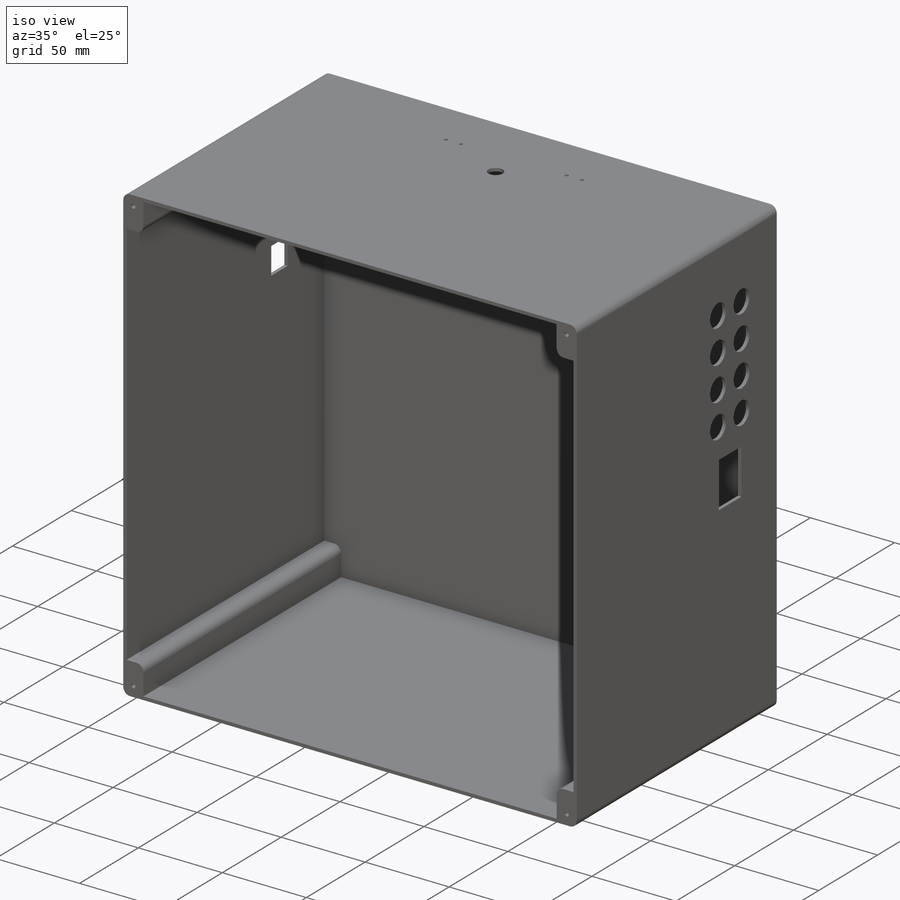
[diagram: iso view]
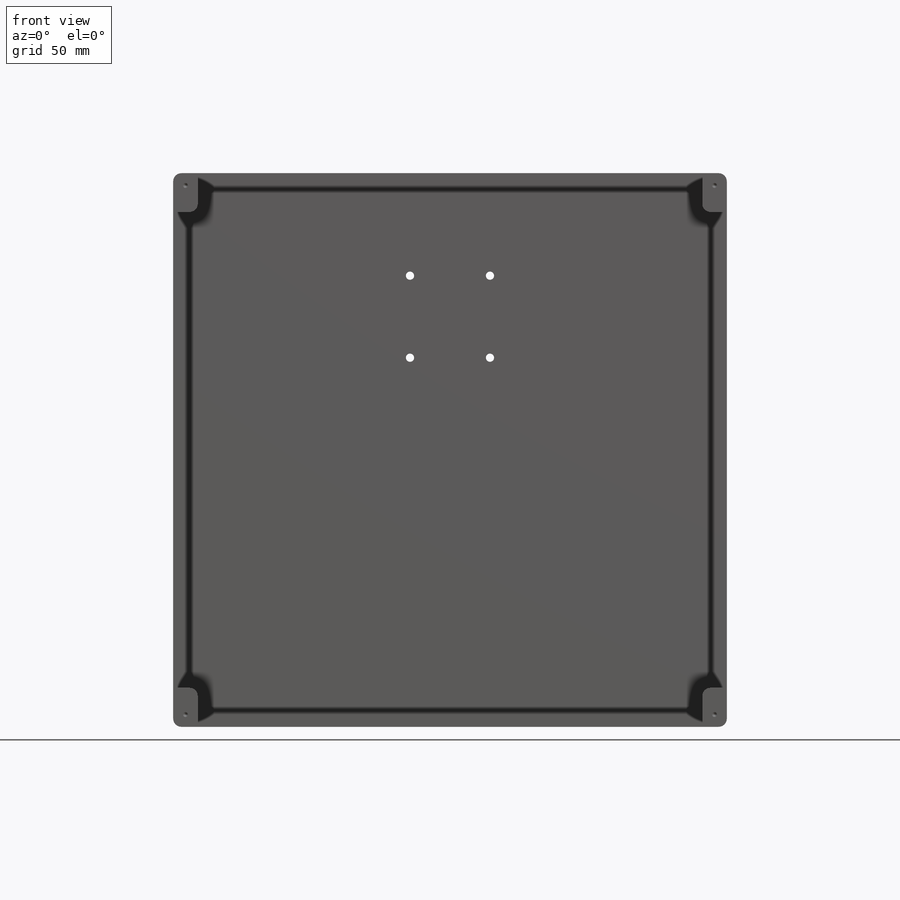
[diagram: front view]
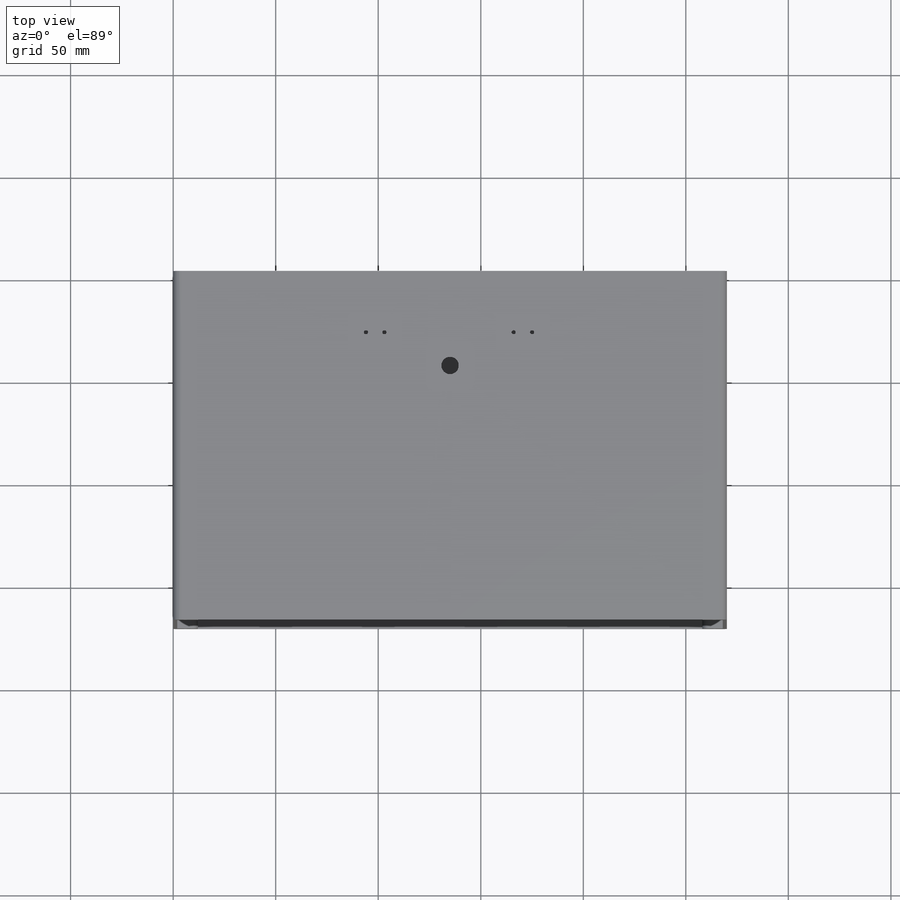
[diagram: top view]
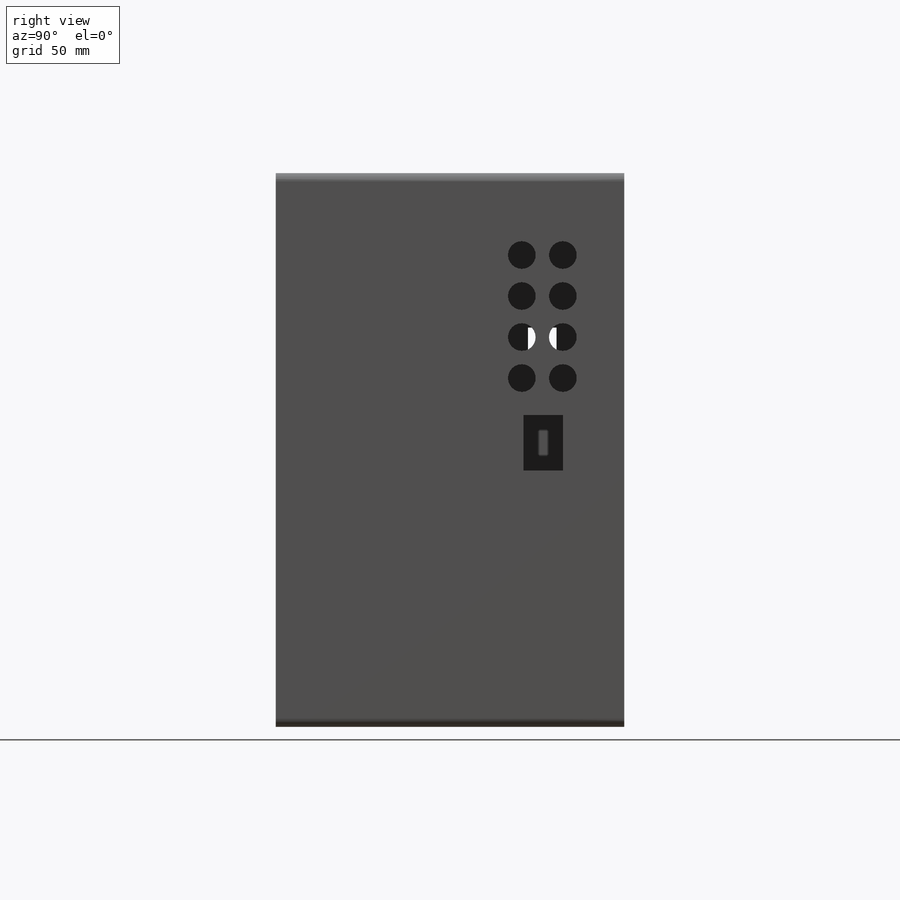
[diagram: right view]
SOLIDWORKS PART (.sldprt)
format: sldprt  version: not decoded by parser v0  size: 452,608 bytes
history: native  units: mm
features: sketch x12, cut_extrude x9, thread x4, plane x3, fillet x2, material x1, extrude x1, hole x1, pattern_linear x1 (+13 scaffold rows collapsed)
feature tree (47):
  scaffold x13  (default folders/planes/origin — collapsed)
  material  "Matériau <non spécifié>"
  plane  "Plan de face"
  plane  "Plan de dessus"
  plane  "Plan de droite"
  sketch  "Esquisse1"  dims[D1=270.0mm D2=270.0mm]
  extrude  "Extrusion1"  Depth=170mm
  fillet  "Congé2"  Radius=4mm
  sketch  "Esquisse2"  dims[D1=17.0mm D2=10.0mm D3=2.0mm D4=2.0mm D5=2.0mm D6=2.0mm]
  cut_extrude  "Extrusion2"  Depth=168mm
  fillet  "Congé3"  Radius=4mm
  hole  "Trou taraudé #4-481"  Diameter=2.3749mm Depth=45mm
  sketch  "Esquisse3D1"  dims[D1=6.0mm D2=6.0mm D3=6.0mm D4=6.0mm D5=6.0mm D6=6.0mm D7=6.0mm D8=6.0mm]
  sketch  "Esquisse4"  dims[hole-wizard template sketch: 46 standard entries collapsed; hole parameters kept: c15.Diamètre du trou pour taraudage=2.3749mm c15.Profondeur du trou pour taraudage=45.0mm c15.D3=~14.816244mm c15.Angle de pointe=118.0deg]
  thread  "Filetage de perçage1"  Diameter=40mm  [1 undecoded]
  thread  "Filetage de perçage2"  Diameter=40mm  [1 undecoded]
  thread  "Filetage de perçage3"  Diameter=40mm  [1 undecoded]
  thread  "Filetage de perçage4"  Diameter=40mm  [1 undecoded]
  sketch  "Esquisse5"  dims[D1=14.0mm D2=16.0mm D3=33.0mm]
  cut_extrude  "Enlèv. mat.-Extru.1"  [1 undecoded]
  sketch  "Esquisse6"  dims[c1.D1=13.5mm c1.D2=13.5mm c1.D3=13.5mm c1.D4=13.5mm c1.D5=13.5mm c1.D6=13.5mm c1.D7=13.5mm c2.D4=192.0mm c3.D4=90.0deg c4.D4=192.0mm c5.D4=90.0deg c6.D4=30.0mm c6.D5=15.0mm c6.D6=15.0mm c6.D7=20.0mm c6.D8=25.0mm c7.D4=50.0mm c7.D5=30.0mm c7.D6=15.0mm c7.D3=40.0mm c8.D4=30.0mm]
  cut_extrude  "Enlèv. mat.-Extru.6"  Depth=10mm
  pattern_linear  "Répétition linéaire3"  Count1=4 Count2=1 Spacing1=20mm Spacing2=10mm
  sketch  "Esquisse7"  dims[D1=8.5mm D2=46.2mm]
  cut_extrude  "Enlèv. mat.-Extru.7"  Depth=3mm
  sketch  "Esquisse8"  dims[D1=3.0mm]
  cut_extrude  "Enlèv. mat.-Extru.8"  [1 undecoded]
  sketch  "Esquisse9"  dims[D1=30.0mm D2=9.0mm D3=95.0mm D4=9.0mm D5=63.0mm]
  cut_extrude  "Enlèv. mat.-Extru.9"  Depth=10mm
  sketch  "Esquisse10"  dims[D1=19.2mm D2=27.0mm D3=125.0mm D4=30.0mm]
  cut_extrude  "Enlèv. mat.-Extru.10"  Depth=10mm
  sketch  "Esquisse11"  dims[D1=10.0mm D2=10.0mm D3=25.0mm]
  cut_extrude  "Enlèv. mat.-Extru.11"  Depth=10mm
  sketch  "Esquisse12"  dims[D1=4.0mm D2=4.0mm D3=4.0mm D4=4.0mm]
  cut_extrude  "Enlèv. mat.-Extru.12"  Depth=10mm
decode coverage: 28 of 30 modeling features carry decoded parameters
note: ~ marks probable driven/reference dimensions
note: 6 parameter values undecoded
note: suppression state not decoded; provenance and decode notes live in map.json
